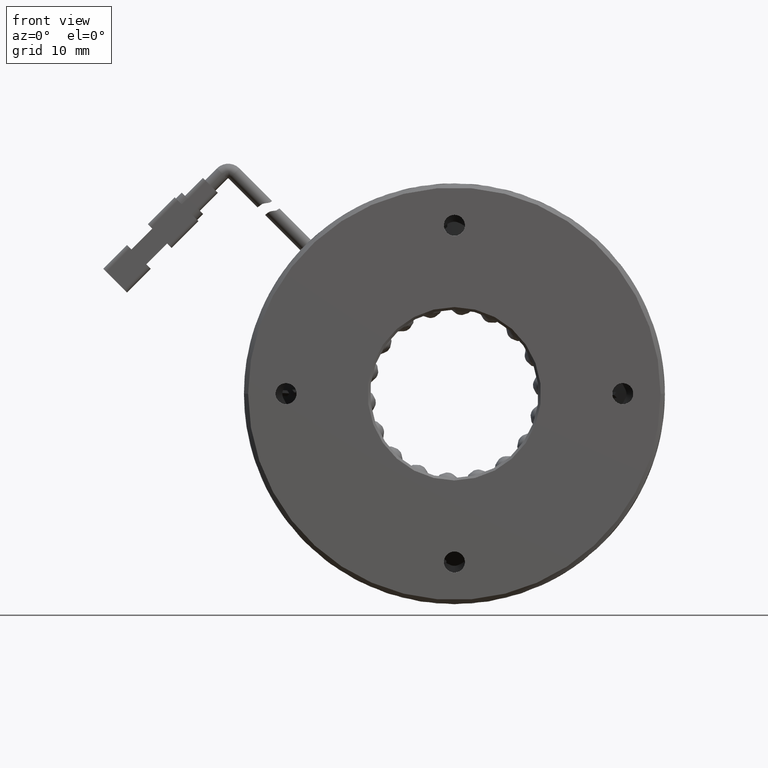
[diagram: clean part render]
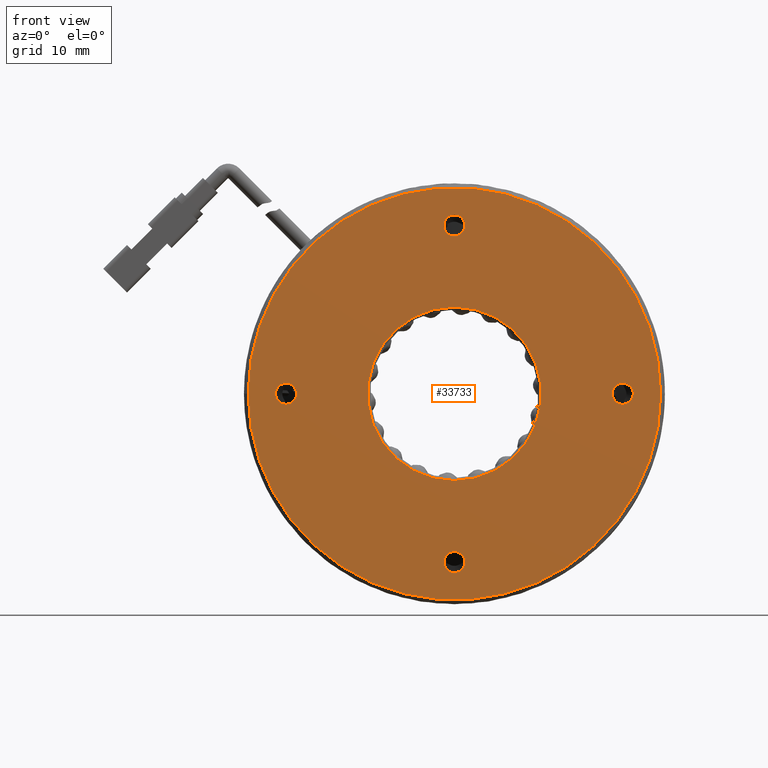
[diagram: same view with one face highlighted and labeled with its STEP entity id]
A machine part, front view. The second image highlights one B-rep face of the part: STEP entity #33733.
In plain terms, the highlighted planar face has unit normal (0, 1, 0).
Its self-contained STEP definition (entity closure, byte-faithful):
#147 = AXIS2_PLACEMENT_3D ( 'NONE', #4188, #37789, #9040 ) ;
#712 = CARTESIAN_POINT ( 'NONE',  ( 15.97418136128692400, 0.1682341470607001700, 1.250000000000067700 ) ) ;
#780 = CIRCLE ( 'NONE', #53774, 10.30000000000001700 ) ;
#792 = CARTESIAN_POINT ( 'NONE',  ( -4.025818638713077200, 0.1682341470607001700, 0.0000000000000000000 ) ) ;
#1005 = DIRECTION ( 'NONE',  ( -0.0000000000000000000, -1.000000000000000000, -0.0000000000000000000 ) ) ;
#1819 = CARTESIAN_POINT ( 'NONE',  ( -24.02581863871307600, 0.1682341470607001700, 1.249999999999787900 ) ) ;
#2008 = CIRCLE ( 'NONE', #52515, 1.249999999999997600 ) ;
#2430 = DIRECTION ( 'NONE',  ( -0.0000000000000000000, -1.000000000000000000, -0.0000000000000000000 ) ) ;
#3227 = EDGE_CURVE ( 'NONE', #40926, #34588, #49713, .T. ) ;
#3684 = VERTEX_POINT ( 'NONE', #14881 ) ;
#4127 = CARTESIAN_POINT ( 'NONE',  ( -4.025818638713077200, 0.1682341470607001700, 0.0000000000000000000 ) ) ;
#4188 = CARTESIAN_POINT ( 'NONE',  ( -4.025818638713216700, 0.1682341470607001700, 20.00000000000000000 ) ) ;
#4202 = DIRECTION ( 'NONE',  ( -1.000000000000000000, 6.969871108835388500E-017, 0.0000000000000000000 ) ) ;
#4736 = CARTESIAN_POINT ( 'NONE',  ( -4.025818638713077200, 0.1682341470607001700, -10.30000000000001700 ) ) ;
#4898 = ORIENTED_EDGE ( 'NONE', *, *, #28814, .F. ) ;
#5515 = AXIS2_PLACEMENT_3D ( 'NONE', #43714, #15002, #48492 ) ;
#5623 = DIRECTION ( 'NONE',  ( 0.0000000000000000000, 0.0000000000000000000, -1.000000000000000000 ) ) ;
#6818 = ORIENTED_EDGE ( 'NONE', *, *, #48604, .F. ) ;
#7482 = VERTEX_POINT ( 'NONE', #42607 ) ;
#8213 = CIRCLE ( 'NONE', #5515, 1.249999999999997600 ) ;
#8221 = DIRECTION ( 'NONE',  ( -0.0000000000000000000, -1.000000000000000000, -0.0000000000000000000 ) ) ;
#8807 = ORIENTED_EDGE ( 'NONE', *, *, #25740, .F. ) ;
#8979 = DIRECTION ( 'NONE',  ( -1.000000000000000000, 6.969871108835388500E-017, 0.0000000000000000000 ) ) ;
#9040 = DIRECTION ( 'NONE',  ( 0.0000000000000000000, 0.0000000000000000000, -1.000000000000000000 ) ) ;
#9395 = EDGE_LOOP ( 'NONE', ( #4898, #16279 ) ) ;
#9817 = FACE_BOUND ( 'NONE', #17248, .T. ) ;
#10277 = EDGE_CURVE ( 'NONE', #27190, #31217, #47290, .T. ) ;
#10375 = CIRCLE ( 'NONE', #36234, 1.249999999999997600 ) ;
#11339 = FACE_BOUND ( 'NONE', #36251, .T. ) ;
#12288 = CIRCLE ( 'NONE', #54807, 1.249999999999997600 ) ;
#12946 = AXIS2_PLACEMENT_3D ( 'NONE', #792, #34372, #5623 ) ;
#13089 = EDGE_CURVE ( 'NONE', #3684, #60851, #44896, .T. ) ;
#14881 = CARTESIAN_POINT ( 'NONE',  ( -4.025818638713216700, 0.1682341470607001700, 21.24999999999999600 ) ) ;
#15002 = DIRECTION ( 'NONE',  ( -0.0000000000000000000, -1.000000000000000000, -0.0000000000000000000 ) ) ;
#15104 = AXIS2_PLACEMENT_3D ( 'NONE', #22700, #22692, #22643 ) ;
#16279 = ORIENTED_EDGE ( 'NONE', *, *, #26634, .F. ) ;
#16954 = VERTEX_POINT ( 'NONE', #44470 ) ;
#17248 = EDGE_LOOP ( 'NONE', ( #8807, #37935 ) ) ;
#17882 = CARTESIAN_POINT ( 'NONE',  ( -14.02581863871307800, 0.1682341470607001700, 0.0000000000000000000 ) ) ;
#18264 = CARTESIAN_POINT ( 'NONE',  ( -24.02581863871307600, 0.1682341470607001700, -2.096004034477567100E-013 ) ) ;
#18740 = VERTEX_POINT ( 'NONE', #24980 ) ;
#19700 = DIRECTION ( 'NONE',  ( 0.0000000000000000000, -1.000000000000000000, 0.0000000000000000000 ) ) ;
#21167 = EDGE_LOOP ( 'NONE', ( #6818, #57192 ) ) ;
#21312 = ORIENTED_EDGE ( 'NONE', *, *, #54292, .F. ) ;
#21910 = CARTESIAN_POINT ( 'NONE',  ( -4.025818638713077200, 0.1682341470607001700, -20.00000000000000000 ) ) ;
#22078 = EDGE_LOOP ( 'NONE', ( #32161, #40212 ) ) ;
#22582 = FACE_BOUND ( 'NONE', #21167, .T. ) ;
#22643 = DIRECTION ( 'NONE',  ( 0.0000000000000000000, 0.0000000000000000000, -1.000000000000000000 ) ) ;
#22692 = DIRECTION ( 'NONE',  ( -0.0000000000000000000, -1.000000000000000000, -0.0000000000000000000 ) ) ;
#22700 = CARTESIAN_POINT ( 'NONE',  ( -4.025818638713216700, 0.1682341470607001700, 20.00000000000000000 ) ) ;
#22741 = DIRECTION ( 'NONE',  ( 0.0000000000000000000, -0.0000000000000000000, 1.000000000000000000 ) ) ;
#24980 = CARTESIAN_POINT ( 'NONE',  ( 20.47418136128691300, 0.1682341470606984500, 3.031000827889698500E-015 ) ) ;
#25364 = VERTEX_POINT ( 'NONE', #33701 ) ;
#25740 = EDGE_CURVE ( 'NONE', #31217, #27190, #2008, .T. ) ;
#26634 = EDGE_CURVE ( 'NONE', #7482, #51779, #41135, .T. ) ;
#26742 = DIRECTION ( 'NONE',  ( 0.0000000000000000000, 0.0000000000000000000, -1.000000000000000000 ) ) ;
#26811 = ORIENTED_EDGE ( 'NONE', *, *, #47472, .F. ) ;
#27190 = VERTEX_POINT ( 'NONE', #712 ) ;
#27364 = PLANE ( 'NONE',  #55356 ) ;
#28383 = ORIENTED_EDGE ( 'NONE', *, *, #3227, .F. ) ;
#28814 = EDGE_CURVE ( 'NONE', #51779, #7482, #780, .T. ) ;
#29534 = VERTEX_POINT ( 'NONE', #60697 ) ;
#30337 = AXIS2_PLACEMENT_3D ( 'NONE', #18264, #1005, #52977 ) ;
#31217 = VERTEX_POINT ( 'NONE', #53857 ) ;
#31252 = CARTESIAN_POINT ( 'NONE',  ( -4.025818638713077200, 0.1682341470607001700, -20.00000000000000000 ) ) ;
#32161 = ORIENTED_EDGE ( 'NONE', *, *, #34358, .F. ) ;
#32360 = CIRCLE ( 'NONE', #147, 1.249999999999997600 ) ;
#32897 = DIRECTION ( 'NONE',  ( 0.0000000000000000000, 0.0000000000000000000, -1.000000000000000000 ) ) ;
#32911 = DIRECTION ( 'NONE',  ( -0.0000000000000000000, -1.000000000000000000, -0.0000000000000000000 ) ) ;
#32955 = CARTESIAN_POINT ( 'NONE',  ( 15.97418136128692400, 0.1682341470607001700, 6.994114989403139100E-014 ) ) ;
#33001 = DIRECTION ( 'NONE',  ( 6.938893903907228400E-017, 1.000000000000000000, 0.0000000000000000000 ) ) ;
#33701 = CARTESIAN_POINT ( 'NONE',  ( -28.52581863871306600, 0.1682341470607018900, 0.0000000000000000000 ) ) ;
#33733 = ADVANCED_FACE ( 'NONE', ( #22582, #9817, #11339, #48042, #59176, #46523 ), #27364, .F. ) ;
#34358 = EDGE_CURVE ( 'NONE', #25364, #18740, #44286, .T. ) ;
#34372 = DIRECTION ( 'NONE',  ( 0.0000000000000000000, -1.000000000000000000, 0.0000000000000000000 ) ) ;
#34588 = VERTEX_POINT ( 'NONE', #1819 ) ;
#35795 = CIRCLE ( 'NONE', #57410, 24.49999999999998900 ) ;
#36023 = DIRECTION ( 'NONE',  ( 0.0000000000000000000, 0.0000000000000000000, -1.000000000000000000 ) ) ;
#36234 = AXIS2_PLACEMENT_3D ( 'NONE', #21910, #55310, #26742 ) ;
#36251 = EDGE_LOOP ( 'NONE', ( #26811, #59318 ) ) ;
#36988 = CARTESIAN_POINT ( 'NONE',  ( 15.97418136128692400, 0.1682341470607001700, 6.994114989403139100E-014 ) ) ;
#37619 = EDGE_LOOP ( 'NONE', ( #28383, #21312 ) ) ;
#37727 = DIRECTION ( 'NONE',  ( 6.938893903907228400E-017, 1.000000000000000000, 0.0000000000000000000 ) ) ;
#37789 = DIRECTION ( 'NONE',  ( -0.0000000000000000000, -1.000000000000000000, -0.0000000000000000000 ) ) ;
#37935 = ORIENTED_EDGE ( 'NONE', *, *, #10277, .F. ) ;
#38580 = EDGE_CURVE ( 'NONE', #29534, #16954, #10375, .T. ) ;
#38713 = EDGE_CURVE ( 'NONE', #18740, #25364, #35795, .T. ) ;
#40212 = ORIENTED_EDGE ( 'NONE', *, *, #38713, .F. ) ;
#40926 = VERTEX_POINT ( 'NONE', #59249 ) ;
#41135 = CIRCLE ( 'NONE', #12946, 10.30000000000001700 ) ;
#41801 = DIRECTION ( 'NONE',  ( 0.0000000000000000000, 0.0000000000000000000, -1.000000000000000000 ) ) ;
#42607 = CARTESIAN_POINT ( 'NONE',  ( -4.025818638713076300, 0.1682341470607001700, 10.30000000000001700 ) ) ;
#43714 = CARTESIAN_POINT ( 'NONE',  ( -24.02581863871307600, 0.1682341470607001700, -2.096004034477567100E-013 ) ) ;
#44286 = CIRCLE ( 'NONE', #49471, 24.49999999999998900 ) ;
#44470 = CARTESIAN_POINT ( 'NONE',  ( -4.025818638713077200, 0.1682341470607001700, -21.24999999999999600 ) ) ;
#44896 = CIRCLE ( 'NONE', #15104, 1.249999999999997600 ) ;
#46523 = FACE_BOUND ( 'NONE', #9395, .T. ) ;
#47290 = CIRCLE ( 'NONE', #55268, 1.249999999999997600 ) ;
#47472 = EDGE_CURVE ( 'NONE', #60851, #3684, #32360, .T. ) ;
#48042 = FACE_BOUND ( 'NONE', #37619, .T. ) ;
#48350 = CARTESIAN_POINT ( 'NONE',  ( -4.025818638713077200, 0.1682341470607001700, 0.0000000000000000000 ) ) ;
#48492 = DIRECTION ( 'NONE',  ( 0.0000000000000000000, 0.0000000000000000000, -1.000000000000000000 ) ) ;
#48604 = EDGE_CURVE ( 'NONE', #16954, #29534, #12288, .T. ) ;
#49471 = AXIS2_PLACEMENT_3D ( 'NONE', #4127, #37727, #8979 ) ;
#49713 = CIRCLE ( 'NONE', #30337, 1.249999999999997600 ) ;
#49799 = CARTESIAN_POINT ( 'NONE',  ( -4.025818638713216700, 0.1682341470607001700, 18.75000000000000400 ) ) ;
#51362 = DIRECTION ( 'NONE',  ( 0.0000000000000000000, 1.000000000000000000, 0.0000000000000000000 ) ) ;
#51779 = VERTEX_POINT ( 'NONE', #4736 ) ;
#52515 = AXIS2_PLACEMENT_3D ( 'NONE', #36988, #8221, #41801 ) ;
#52977 = DIRECTION ( 'NONE',  ( 0.0000000000000000000, 0.0000000000000000000, -1.000000000000000000 ) ) ;
#53138 = DIRECTION ( 'NONE',  ( 0.0000000000000000000, 0.0000000000000000000, -1.000000000000000000 ) ) ;
#53774 = AXIS2_PLACEMENT_3D ( 'NONE', #48350, #19700, #53138 ) ;
#53857 = CARTESIAN_POINT ( 'NONE',  ( 15.97418136128692400, 0.1682341470607001700, -1.249999999999927600 ) ) ;
#54292 = EDGE_CURVE ( 'NONE', #34588, #40926, #8213, .T. ) ;
#54807 = AXIS2_PLACEMENT_3D ( 'NONE', #31252, #2430, #36023 ) ;
#55268 = AXIS2_PLACEMENT_3D ( 'NONE', #32955, #32911, #32897 ) ;
#55310 = DIRECTION ( 'NONE',  ( -0.0000000000000000000, -1.000000000000000000, -0.0000000000000000000 ) ) ;
#55356 = AXIS2_PLACEMENT_3D ( 'NONE', #17882, #51362, #22741 ) ;
#57192 = ORIENTED_EDGE ( 'NONE', *, *, #38580, .F. ) ;
#57410 = AXIS2_PLACEMENT_3D ( 'NONE', #61531, #33001, #4202 ) ;
#59176 = FACE_OUTER_BOUND ( 'NONE', #22078, .T. ) ;
#59249 = CARTESIAN_POINT ( 'NONE',  ( -24.02581863871307600, 0.1682341470607001700, -1.250000000000207400 ) ) ;
#59318 = ORIENTED_EDGE ( 'NONE', *, *, #13089, .F. ) ;
#60697 = CARTESIAN_POINT ( 'NONE',  ( -4.025818638713077200, 0.1682341470607001700, -18.75000000000000400 ) ) ;
#60851 = VERTEX_POINT ( 'NONE', #49799 ) ;
#61531 = CARTESIAN_POINT ( 'NONE',  ( -4.025818638713077200, 0.1682341470607001700, 0.0000000000000000000 ) ) ;